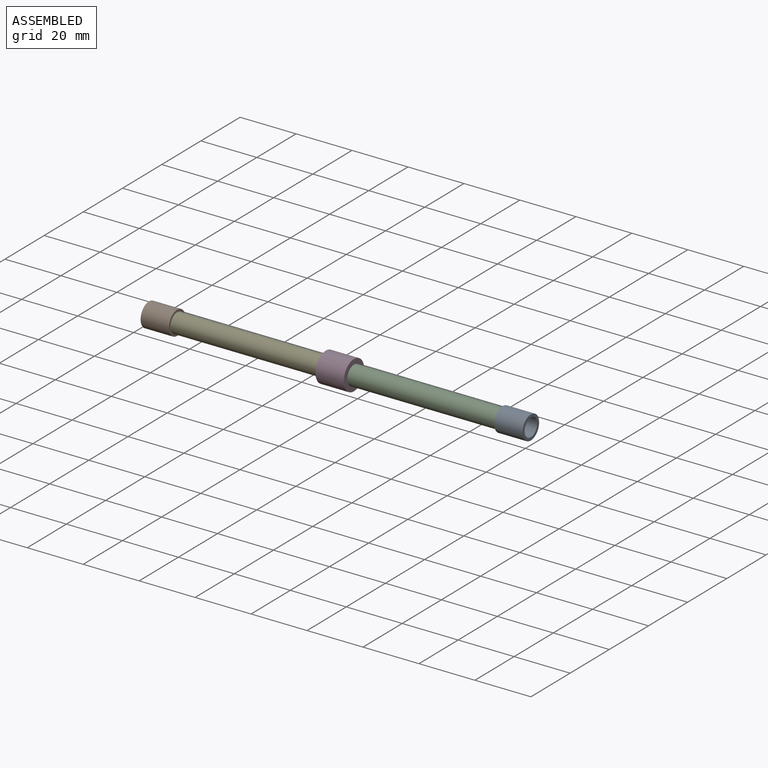
[diagram: assembled view]
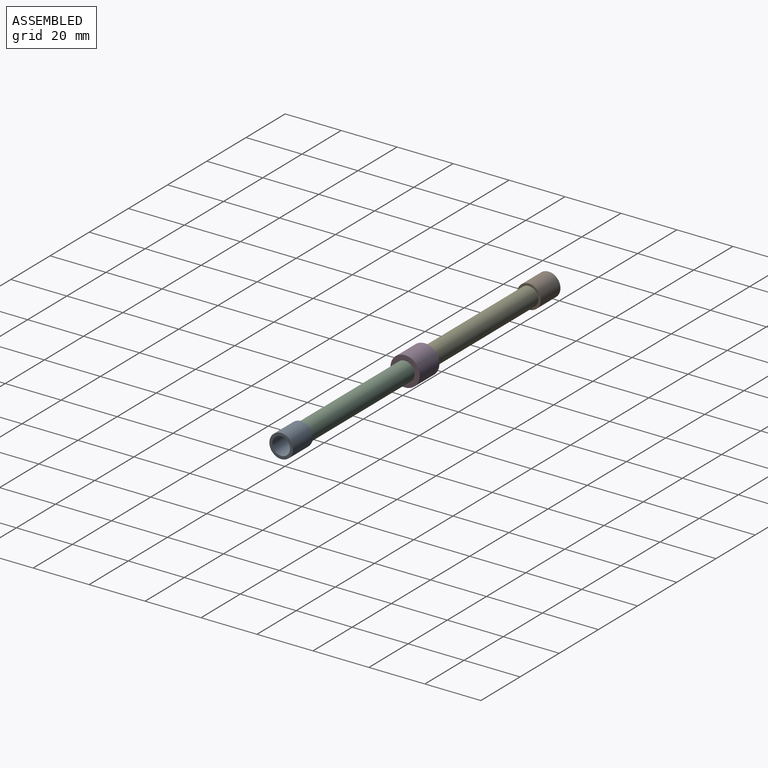
[diagram: assembled view, second angle]
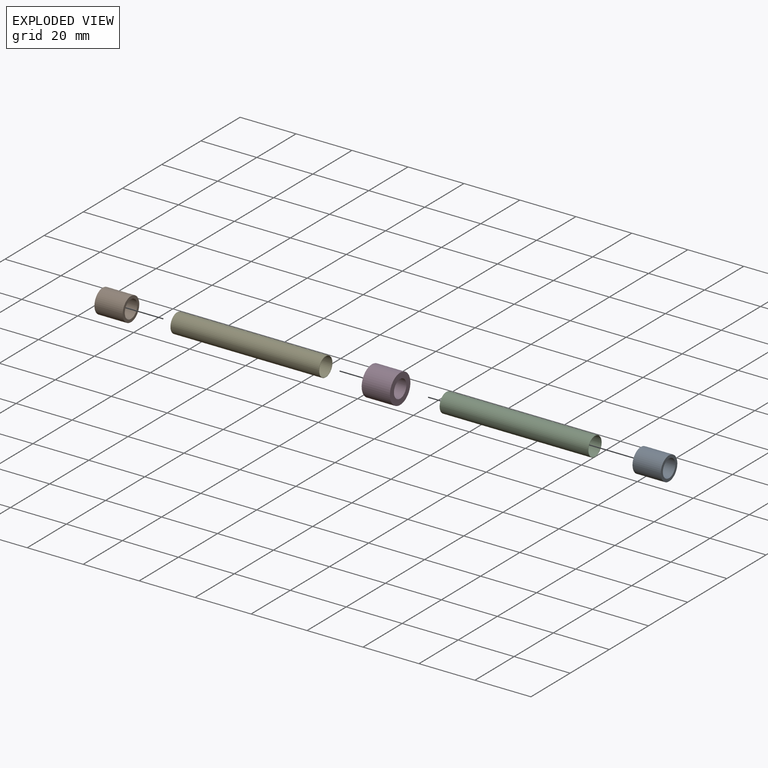
[diagram: exploded view]
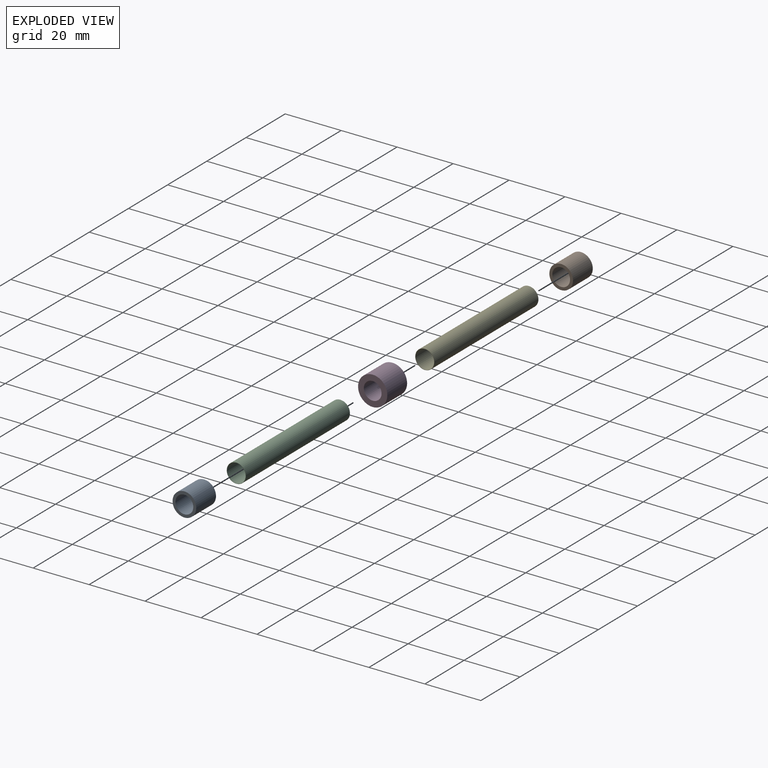
[diagram: exploded view, second angle]
ASSEMBLY  parts=5 mates=4
PART A: 4 faces, bbox 8.5x8.5x10.1 mm
  f0: cylinder r=3.17mm len=10.1mm, axis (0,0,-1), area 201.5mm2, adj f2,f3
  f1: cylinder r=4.22mm len=10.1mm, axis (0,0,-1), area 268.1mm2, adj f2,f3
  f2: plane 8.45x8.45mm, normal (0,0,1), area 24.4mm2, adj f0,f1
  f3: plane 8.45x8.45mm, normal (0,0,-1), area 24.4mm2, adj f0,f1
PART B: 4 faces, bbox 8.5x8.5x10.1 mm
  f0: cylinder r=3.17mm len=10.1mm, axis (0,0,-1), area 201.5mm2, adj f2,f3
  f1: cylinder r=4.22mm len=10.1mm, axis (0,0,-1), area 268.1mm2, adj f2,f3
  f2: plane 8.45x8.45mm, normal (0,0,1), area 24.4mm2, adj f0,f1
  f3: plane 8.45x8.45mm, normal (0,0,-1), area 24.4mm2, adj f0,f1
PART C: 4 faces, bbox 6.9x6.9x53.1 mm
  f0: cylinder r=3.32mm len=53.1mm, axis (0,0,-1), area 1109.3mm2, adj f2,f3
  f1: cylinder r=3.43mm len=53.1mm, axis (0,0,-1), area 1142.7mm2, adj f2,f3
  f2: plane 6.85x6.85mm, normal (0,0,1), area 2.1mm2, adj f0,f1
  f3: plane 6.85x6.85mm, normal (0,0,-1), area 2.1mm2, adj f0,f1
PART D: 4 faces, bbox 10.5x10.5x10.1 mm
  f0: cylinder r=3.17mm len=10.1mm, axis (0,0,-1), area 201.5mm2, adj f2,f3
  f1: cylinder r=5.22mm len=10.45mm, axis (0,0,-1), area 331.6mm2, adj f2,f3
  f2: plane 10.45x10.45mm, normal (0,0,1), area 54.1mm2, adj f0,f1
  f3: plane 10.45x10.45mm, normal (0,0,-1), area 54.1mm2, adj f0,f1
PART E: 4 faces, bbox 6.9x6.9x53.1 mm
  f0: cylinder r=3.32mm len=53.1mm, axis (0,0,-1), area 1109.3mm2, adj f2,f3
  f1: cylinder r=3.43mm len=53.1mm, axis (0,0,-1), area 1142.7mm2, adj f2,f3
  f2: plane 6.85x6.85mm, normal (0,0,1), area 2.1mm2, adj f0,f1
  f3: plane 6.85x6.85mm, normal (0,0,-1), area 2.1mm2, adj f0,f1
PLACE A rot(axis=(0,1,0),90deg) t=(111.85,0,100.05)mm
PLACE B rot(axis=(0,1,0),90deg) t=(-14.55,0,75.05)mm
PLACE C rot(axis=(0,1,0),90deg) t=(58.75,0,100.05)mm
PLACE D rot(axis=(0,1,0),90deg) t=(48.65,0,55.31)mm fixed
PLACE E rot(axis=(0,1,0),90deg) t=(-4.45,0,75.05)mm
MATE fastened D.f0 <-> E.f0  axis (-1,0,0) through (48.65,0,75.05)mm
MATE fastened C.f0 <-> D.f0  axis (-1,0,0) through (58.75,0,75.05)mm
MATE fastened A.f0 <-> C.f0  axis (-1,0,0) through (111.85,0,75.05)mm
MATE fastened E.f1 <-> B.f1  axis (-1,0,0) through (-4.45,0,75.05)mm
